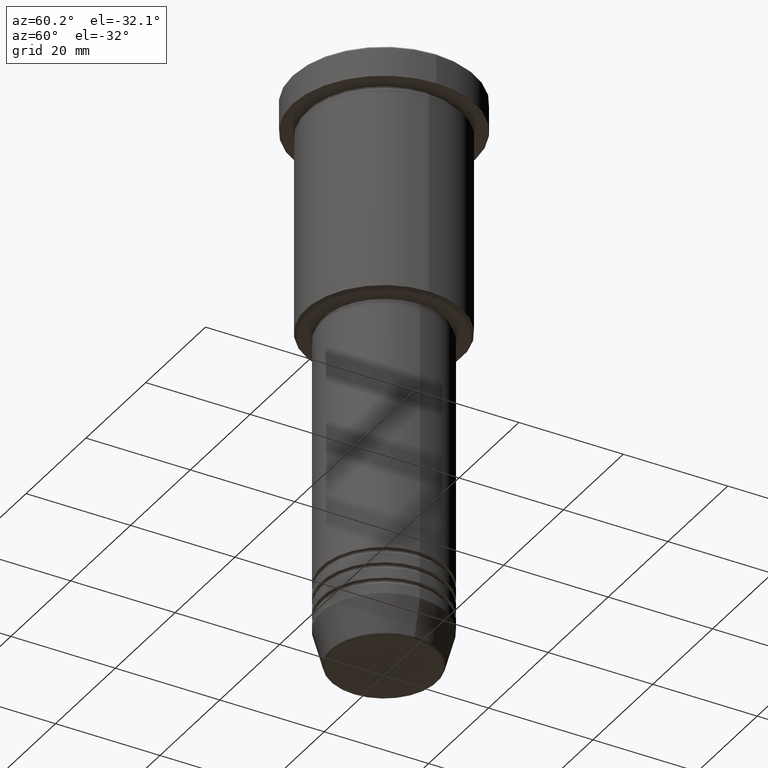
[diagram: clean part render]
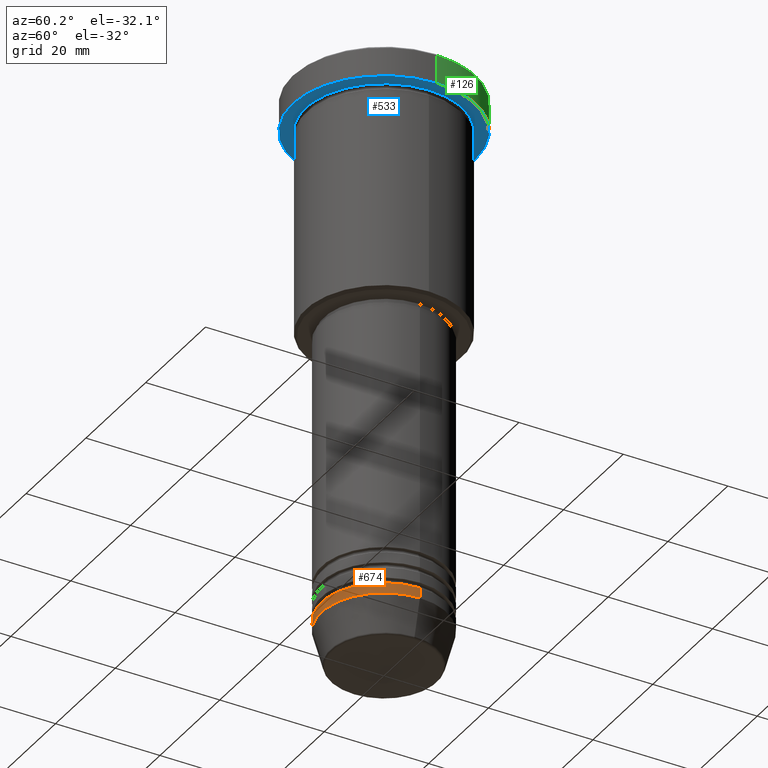
[diagram: same view with three faces highlighted in distinct colors, each labeled with its STEP entity id]
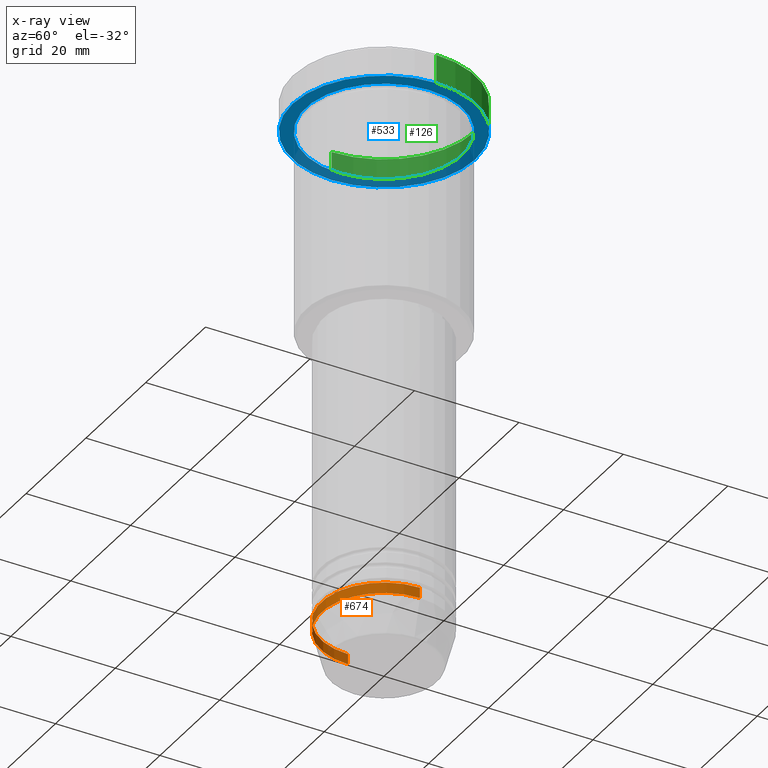
[diagram: x-ray of the same camera — body ghosted, the three highlighted faces saturated]
A machine part, auxiliary view with three faces highlighted in distinct colors.
The next image is the same camera in x-ray (body ghosted, the three faces saturated) — at least one of them is partly hidden behind the body in this view.
Their STEP definitions:

[orange] entity #674 — the highlighted cylindrical surface (partial cylindrical patch) has radius 12 mm, axis along (-0, -0, 1).
#1 = CYLINDRICAL_SURFACE ( 'NONE', #572, 12.00000000000000000 ) ;
#87 = CARTESIAN_POINT ( 'NONE',  ( 0.000000000000000000, 0.000000000000000000, -102.0000000000000142 ) ) ;
#93 = VERTEX_POINT ( 'NONE', #1031 ) ;
#156 = DIRECTION ( 'NONE',  ( -0.000000000000000000, -0.000000000000000000, 1.000000000000000000 ) ) ;
#159 = EDGE_CURVE ( 'NONE', #93, #499, #975, .T. ) ;
#170 = EDGE_CURVE ( 'NONE', #772, #404, #681, .T. ) ;
#230 = ORIENTED_EDGE ( 'NONE', *, *, #245, .F. ) ;
#245 = EDGE_CURVE ( 'NONE', #404, #499, #395, .T. ) ;
#260 = DIRECTION ( 'NONE',  ( -0.000000000000000000, -0.000000000000000000, 1.000000000000000000 ) ) ;
#262 = DIRECTION ( 'NONE',  ( -0.000000000000000000, -0.000000000000000000, 1.000000000000000000 ) ) ;
#347 = CARTESIAN_POINT ( 'NONE',  ( 0.000000000000000000, 0.000000000000000000, 0.000000000000000000 ) ) ;
#379 = DIRECTION ( 'NONE',  ( 1.000000000000000000, 0.000000000000000000, 0.000000000000000000 ) ) ;
#395 = CIRCLE ( 'NONE', #722, 12.00000000000000000 ) ;
#402 = CARTESIAN_POINT ( 'NONE',  ( 12.00000000000000000, 0.000000000000000000, -102.0000000000000142 ) ) ;
#404 = VERTEX_POINT ( 'NONE', #941 ) ;
#414 = VECTOR ( 'NONE', #1153, 1000.000000000000000 ) ;
#474 = CARTESIAN_POINT ( 'NONE',  ( 0.000000000000000000, 0.000000000000000000, -104.0000000000000142 ) ) ;
#499 = VERTEX_POINT ( 'NONE', #402 ) ;
#567 = CIRCLE ( 'NONE', #1041, 12.00000000000000000 ) ;
#572 = AXIS2_PLACEMENT_3D ( 'NONE', #347, #260, #1093 ) ;
#613 = DIRECTION ( 'NONE',  ( 1.000000000000000000, 0.000000000000000000, 0.000000000000000000 ) ) ;
#628 = ORIENTED_EDGE ( 'NONE', *, *, #796, .T. ) ;
#634 = EDGE_LOOP ( 'NONE', ( #1035, #628, #901, #230 ) ) ;
#645 = DIRECTION ( 'NONE',  ( -0.000000000000000000, -0.000000000000000000, 1.000000000000000000 ) ) ;
#674 = ADVANCED_FACE ( 'NONE', ( #806 ), #1, .T. ) ;
#681 = LINE ( 'NONE', #886, #414 ) ;
#722 = AXIS2_PLACEMENT_3D ( 'NONE', #87, #262, #613 ) ;
#766 = CARTESIAN_POINT ( 'NONE',  ( 12.00000000000000000, 0.000000000000000000, 0.000000000000000000 ) ) ;
#772 = VERTEX_POINT ( 'NONE', #834 ) ;
#796 = EDGE_CURVE ( 'NONE', #772, #93, #567, .T. ) ;
#806 = FACE_OUTER_BOUND ( 'NONE', #634, .T. ) ;
#834 = CARTESIAN_POINT ( 'NONE',  ( -12.00000000000000000, 1.469576158976823947E-15, -104.0000000000000142 ) ) ;
#884 = VECTOR ( 'NONE', #156, 1000.000000000000000 ) ;
#886 = CARTESIAN_POINT ( 'NONE',  ( -12.00000000000000000, 1.469576158976823947E-15, 0.000000000000000000 ) ) ;
#901 = ORIENTED_EDGE ( 'NONE', *, *, #159, .T. ) ;
#941 = CARTESIAN_POINT ( 'NONE',  ( -12.00000000000000000, 1.469576158976823947E-15, -102.0000000000000142 ) ) ;
#975 = LINE ( 'NONE', #766, #884 ) ;
#1031 = CARTESIAN_POINT ( 'NONE',  ( 12.00000000000000000, 0.000000000000000000, -104.0000000000000142 ) ) ;
#1035 = ORIENTED_EDGE ( 'NONE', *, *, #170, .F. ) ;
#1041 = AXIS2_PLACEMENT_3D ( 'NONE', #474, #645, #379 ) ;
#1093 = DIRECTION ( 'NONE',  ( 1.000000000000000000, 0.000000000000000000, 0.000000000000000000 ) ) ;
#1153 = DIRECTION ( 'NONE',  ( -0.000000000000000000, -0.000000000000000000, 1.000000000000000000 ) ) ;

[blue] entity #533 — the highlighted planar face has unit normal (0, 0, -1).
#12 = DIRECTION ( 'NONE',  ( -0.000000000000000000, -0.000000000000000000, 1.000000000000000000 ) ) ;
#35 = AXIS2_PLACEMENT_3D ( 'NONE', #588, #856, #580 ) ;
#39 = CARTESIAN_POINT ( 'NONE',  ( -17.50000000000000000, 2.143131898507868248E-15, -5.999999999999995559 ) ) ;
#45 = FACE_OUTER_BOUND ( 'NONE', #225, .T. ) ;
#68 = ORIENTED_EDGE ( 'NONE', *, *, #977, .T. ) ;
#84 = DIRECTION ( 'NONE',  ( -1.000000000000000000, 0.000000000000000000, 0.000000000000000000 ) ) ;
#129 = VERTEX_POINT ( 'NONE', #878 ) ;
#139 = EDGE_CURVE ( 'NONE', #430, #129, #326, .T. ) ;
#167 = CIRCLE ( 'NONE', #1061, 17.50000000000000000 ) ;
#180 = CARTESIAN_POINT ( 'NONE',  ( 0.000000000000000000, 0.000000000000000000, -5.999999999999995559 ) ) ;
#205 = CIRCLE ( 'NONE', #801, 15.00000000000000000 ) ;
#209 = DIRECTION ( 'NONE',  ( -0.000000000000000000, -0.000000000000000000, 1.000000000000000000 ) ) ;
#225 = EDGE_LOOP ( 'NONE', ( #287, #449 ) ) ;
#280 = EDGE_LOOP ( 'NONE', ( #68, #438 ) ) ;
#287 = ORIENTED_EDGE ( 'NONE', *, *, #1113, .F. ) ;
#326 = CIRCLE ( 'NONE', #861, 15.00000000000000000 ) ;
#430 = VERTEX_POINT ( 'NONE', #469 ) ;
#438 = ORIENTED_EDGE ( 'NONE', *, *, #139, .T. ) ;
#449 = ORIENTED_EDGE ( 'NONE', *, *, #753, .F. ) ;
#459 = DIRECTION ( 'NONE',  ( -0.000000000000000000, -0.000000000000000000, 1.000000000000000000 ) ) ;
#469 = CARTESIAN_POINT ( 'NONE',  ( 15.00000000000000000, 1.836970198721029589E-15, -5.999999999999994671 ) ) ;
#487 = PLANE ( 'NONE',  #35 ) ;
#533 = ADVANCED_FACE ( 'NONE', ( #673, #45 ), #487, .T. ) ;
#580 = DIRECTION ( 'NONE',  ( -1.000000000000000000, 0.000000000000000000, -0.000000000000000000 ) ) ;
#588 = CARTESIAN_POINT ( 'NONE',  ( 0.000000000000000000, 17.50000000000000000, -5.999999999999995559 ) ) ;
#651 = CARTESIAN_POINT ( 'NONE',  ( 0.000000000000000000, 0.000000000000000000, -5.999999999999995559 ) ) ;
#663 = VERTEX_POINT ( 'NONE', #718 ) ;
#664 = CIRCLE ( 'NONE', #1155, 17.50000000000000000 ) ;
#673 = FACE_BOUND ( 'NONE', #280, .T. ) ;
#718 = CARTESIAN_POINT ( 'NONE',  ( 17.50000000000000000, 0.000000000000000000, -5.999999999999995559 ) ) ;
#753 = EDGE_CURVE ( 'NONE', #830, #663, #664, .T. ) ;
#773 = CARTESIAN_POINT ( 'NONE',  ( 0.000000000000000000, 0.000000000000000000, -5.999999999999995559 ) ) ;
#801 = AXIS2_PLACEMENT_3D ( 'NONE', #1101, #12, #84 ) ;
#830 = VERTEX_POINT ( 'NONE', #39 ) ;
#856 = DIRECTION ( 'NONE',  ( 0.000000000000000000, 0.000000000000000000, -1.000000000000000000 ) ) ;
#861 = AXIS2_PLACEMENT_3D ( 'NONE', #773, #1066, #865 ) ;
#865 = DIRECTION ( 'NONE',  ( -1.000000000000000000, 0.000000000000000000, 0.000000000000000000 ) ) ;
#878 = CARTESIAN_POINT ( 'NONE',  ( -15.00000000000000000, 0.000000000000000000, -5.999999999999994671 ) ) ;
#977 = EDGE_CURVE ( 'NONE', #129, #430, #205, .T. ) ;
#1020 = DIRECTION ( 'NONE',  ( 1.000000000000000000, 0.000000000000000000, 0.000000000000000000 ) ) ;
#1061 = AXIS2_PLACEMENT_3D ( 'NONE', #651, #209, #1020 ) ;
#1066 = DIRECTION ( 'NONE',  ( -0.000000000000000000, -0.000000000000000000, 1.000000000000000000 ) ) ;
#1101 = CARTESIAN_POINT ( 'NONE',  ( 0.000000000000000000, 0.000000000000000000, -5.999999999999995559 ) ) ;
#1102 = DIRECTION ( 'NONE',  ( 1.000000000000000000, 0.000000000000000000, 0.000000000000000000 ) ) ;
#1113 = EDGE_CURVE ( 'NONE', #663, #830, #167, .T. ) ;
#1155 = AXIS2_PLACEMENT_3D ( 'NONE', #180, #459, #1102 ) ;

[green] entity #126 — the highlighted cylindrical surface (partial cylindrical patch) has radius 17.5 mm, axis along (-0, -0, 1).
#32 = VECTOR ( 'NONE', #659, 1000.000000000000000 ) ;
#39 = CARTESIAN_POINT ( 'NONE',  ( -17.50000000000000000, 2.143131898507868248E-15, -5.999999999999995559 ) ) ;
#126 = ADVANCED_FACE ( 'NONE', ( #1166 ), #149, .T. ) ;
#149 = CYLINDRICAL_SURFACE ( 'NONE', #1097, 17.50000000000000000 ) ;
#167 = CIRCLE ( 'NONE', #1061, 17.50000000000000000 ) ;
#185 = CARTESIAN_POINT ( 'NONE',  ( -17.50000000000000000, 2.143131898507868248E-15, -0.5000000000000281997 ) ) ;
#197 = LINE ( 'NONE', #1115, #32 ) ;
#209 = DIRECTION ( 'NONE',  ( -0.000000000000000000, -0.000000000000000000, 1.000000000000000000 ) ) ;
#221 = EDGE_LOOP ( 'NONE', ( #556, #598, #948, #629 ) ) ;
#266 = VERTEX_POINT ( 'NONE', #185 ) ;
#306 = VECTOR ( 'NONE', #1127, 1000.000000000000000 ) ;
#318 = DIRECTION ( 'NONE',  ( 1.000000000000000000, 0.000000000000000000, 0.000000000000000000 ) ) ;
#420 = DIRECTION ( 'NONE',  ( 1.000000000000000000, 0.000000000000000000, 0.000000000000000000 ) ) ;
#454 = CIRCLE ( 'NONE', #723, 17.50000000000000000 ) ;
#497 = EDGE_CURVE ( 'NONE', #266, #1067, #454, .T. ) ;
#556 = ORIENTED_EDGE ( 'NONE', *, *, #1113, .T. ) ;
#562 = DIRECTION ( 'NONE',  ( -0.000000000000000000, -0.000000000000000000, 1.000000000000000000 ) ) ;
#576 = DIRECTION ( 'NONE',  ( 0.000000000000000000, 0.000000000000000000, -1.000000000000000000 ) ) ;
#598 = ORIENTED_EDGE ( 'NONE', *, *, #799, .T. ) ;
#629 = ORIENTED_EDGE ( 'NONE', *, *, #812, .F. ) ;
#651 = CARTESIAN_POINT ( 'NONE',  ( 0.000000000000000000, 0.000000000000000000, -5.999999999999995559 ) ) ;
#659 = DIRECTION ( 'NONE',  ( -0.000000000000000000, -0.000000000000000000, 1.000000000000000000 ) ) ;
#663 = VERTEX_POINT ( 'NONE', #718 ) ;
#675 = CARTESIAN_POINT ( 'NONE',  ( 0.000000000000000000, 0.000000000000000000, 0.000000000000000000 ) ) ;
#718 = CARTESIAN_POINT ( 'NONE',  ( 17.50000000000000000, 0.000000000000000000, -5.999999999999995559 ) ) ;
#723 = AXIS2_PLACEMENT_3D ( 'NONE', #1144, #576, #318 ) ;
#752 = CARTESIAN_POINT ( 'NONE',  ( 17.50000000000000000, 0.000000000000000000, 0.000000000000000000 ) ) ;
#799 = EDGE_CURVE ( 'NONE', #830, #266, #197, .T. ) ;
#812 = EDGE_CURVE ( 'NONE', #663, #1067, #820, .T. ) ;
#820 = LINE ( 'NONE', #752, #306 ) ;
#830 = VERTEX_POINT ( 'NONE', #39 ) ;
#948 = ORIENTED_EDGE ( 'NONE', *, *, #497, .T. ) ;
#1014 = CARTESIAN_POINT ( 'NONE',  ( 17.50000000000000000, 0.000000000000000000, -0.5000000000000281997 ) ) ;
#1020 = DIRECTION ( 'NONE',  ( 1.000000000000000000, 0.000000000000000000, 0.000000000000000000 ) ) ;
#1061 = AXIS2_PLACEMENT_3D ( 'NONE', #651, #209, #1020 ) ;
#1067 = VERTEX_POINT ( 'NONE', #1014 ) ;
#1097 = AXIS2_PLACEMENT_3D ( 'NONE', #675, #562, #420 ) ;
#1113 = EDGE_CURVE ( 'NONE', #663, #830, #167, .T. ) ;
#1115 = CARTESIAN_POINT ( 'NONE',  ( -17.50000000000000000, 2.143131898507868248E-15, 0.000000000000000000 ) ) ;
#1127 = DIRECTION ( 'NONE',  ( -0.000000000000000000, -0.000000000000000000, 1.000000000000000000 ) ) ;
#1144 = CARTESIAN_POINT ( 'NONE',  ( 0.000000000000000000, 0.000000000000000000, -0.5000000000000281997 ) ) ;
#1166 = FACE_OUTER_BOUND ( 'NONE', #221, .T. ) ;